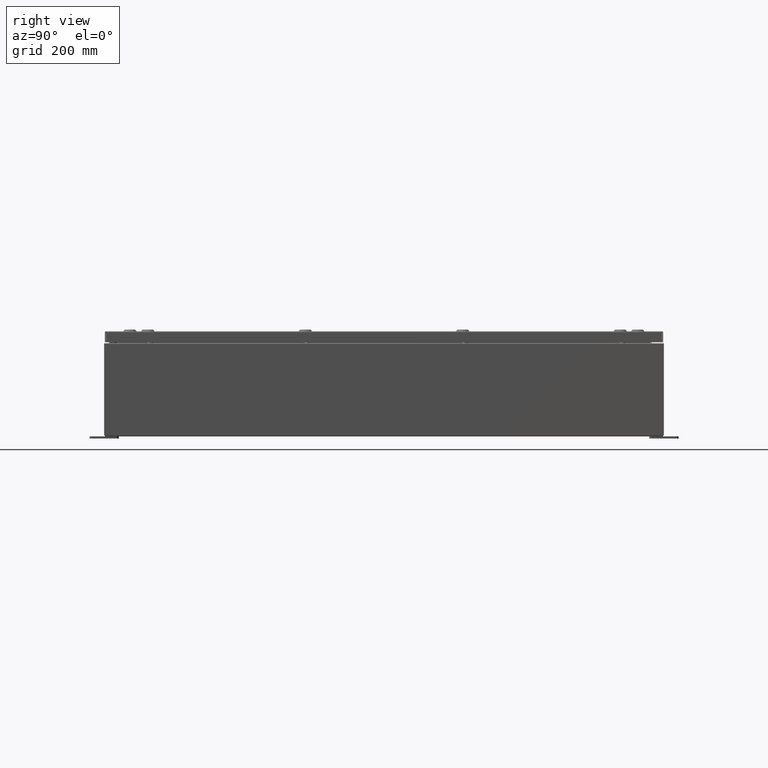
[diagram: clean part render]
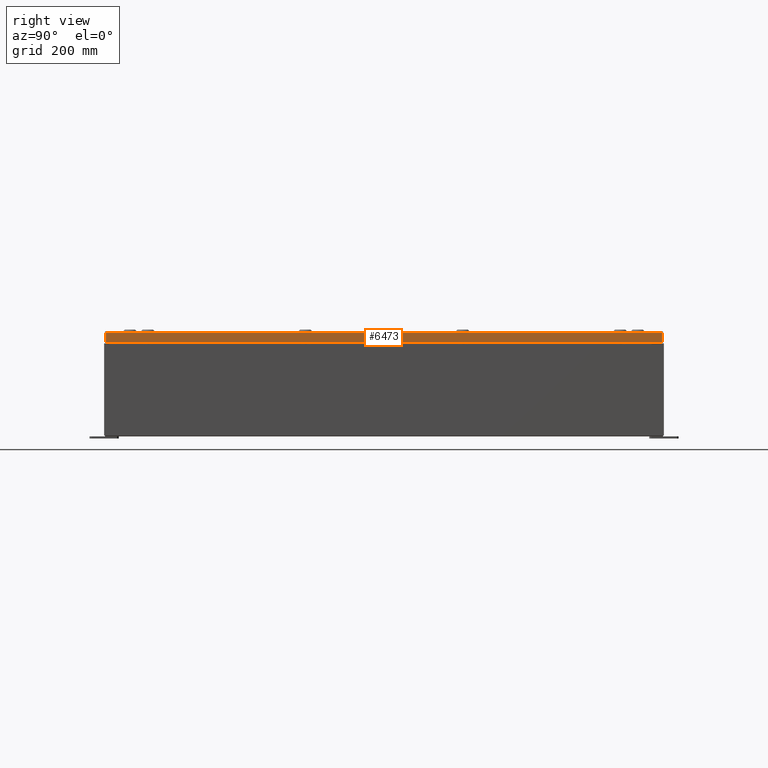
[diagram: same view with one face highlighted and labeled with its STEP entity id]
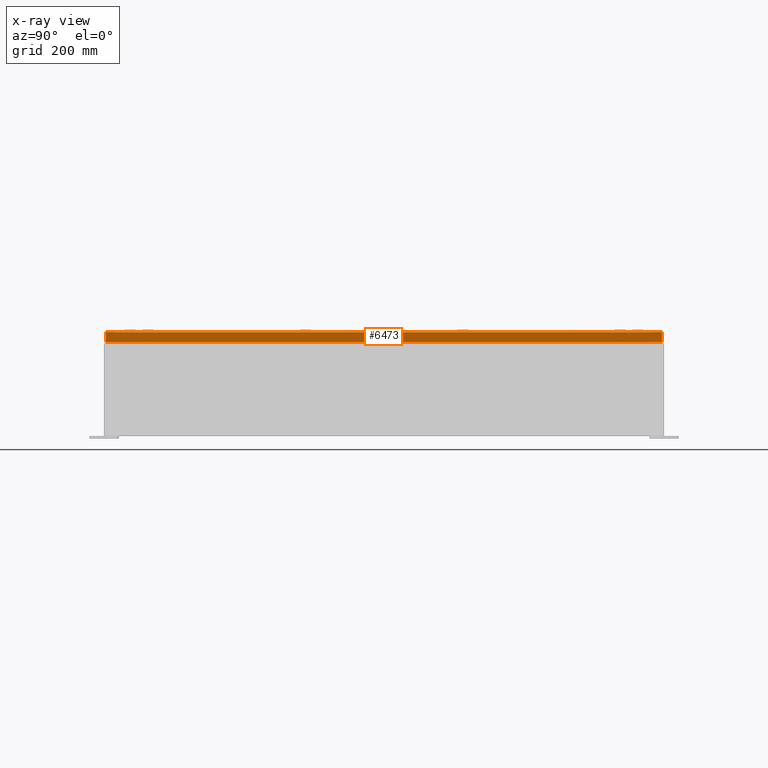
[diagram: x-ray of the same camera — body ghosted, the highlighted face saturated]
A machine part, right view. The second image highlights one B-rep face of the part: STEP entity #6473.
The next image is the same camera in x-ray: the body ghosted, the highlighted face saturated — about 0% of this face is hidden behind the body in this view.
In plain terms, the highlighted planar face has unit normal (1, 0, 0).
Its self-contained STEP definition (entity closure, byte-faithful):
#602 = VECTOR ( 'NONE', #53015, 39.37007874015748100 ) ;
#3177 = CARTESIAN_POINT ( 'NONE',  ( 17.93750000000000700, 23.84865786437627800, -0.9376999999999997600 ) ) ;
#4013 = VECTOR ( 'NONE', #51467, 39.37007874015748100 ) ;
#4488 = CARTESIAN_POINT ( 'NONE',  ( 17.93750000000000700, -23.84865786437626100, -0.9376999999999997600 ) ) ;
#6473 = ADVANCED_FACE ( 'NONE', ( #67368 ), #19571, .T. ) ;
#6684 = AXIS2_PLACEMENT_3D ( 'NONE', #14223, #56677, #24908 ) ;
#8718 = ORIENTED_EDGE ( 'NONE', *, *, #48916, .T. ) ;
#9006 = EDGE_CURVE ( 'NONE', #16138, #24005, #9886, .T. ) ;
#9070 = DIRECTION ( 'NONE',  ( -2.532419924601866100E-015, -6.982962677686265900E-015, 1.000000000000000000 ) ) ;
#9157 = DIRECTION ( 'NONE',  ( 0.0000000000000000000, -1.000000000000000000, 0.0000000000000000000 ) ) ;
#9886 = LINE ( 'NONE', #40885, #23981 ) ;
#10080 = CARTESIAN_POINT ( 'NONE',  ( 17.93750000000000400, -23.84865786437626800, -0.08770000000000008300 ) ) ;
#10414 = CARTESIAN_POINT ( 'NONE',  ( 17.93750000000000400, 23.84865786437627100, -0.08770000000000008300 ) ) ;
#13027 = CARTESIAN_POINT ( 'NONE',  ( 17.93750000000000400, 0.0000000000000000000, -0.08770000000000008300 ) ) ;
#13553 = VERTEX_POINT ( 'NONE', #10080 ) ;
#14223 = CARTESIAN_POINT ( 'NONE',  ( 17.93750000000000400, 0.0000000000000000000, 4.568609605355756000E-014 ) ) ;
#16138 = VERTEX_POINT ( 'NONE', #3177 ) ;
#16946 = ORIENTED_EDGE ( 'NONE', *, *, #51236, .F. ) ;
#19571 = PLANE ( 'NONE',  #6684 ) ;
#23981 = VECTOR ( 'NONE', #9157, 39.37007874015748100 ) ;
#24005 = VERTEX_POINT ( 'NONE', #4488 ) ;
#24908 = DIRECTION ( 'NONE',  ( 2.532419924601866100E-015, 0.0000000000000000000, -1.000000000000000000 ) ) ;
#34553 = LINE ( 'NONE', #46136, #46981 ) ;
#35961 = VERTEX_POINT ( 'NONE', #10414 ) ;
#40590 = CARTESIAN_POINT ( 'NONE',  ( 17.93750000000000400, 23.84865786437627500, 2.122203838334061400E-013 ) ) ;
#40885 = CARTESIAN_POINT ( 'NONE',  ( 17.93750000000000700, -23.93750000000000000, -0.9376999999999997600 ) ) ;
#46136 = CARTESIAN_POINT ( 'NONE',  ( 17.93750000000000400, -23.84865786437626800, -0.07469999999999980800 ) ) ;
#46981 = VECTOR ( 'NONE', #9070, 39.37007874015748100 ) ;
#48916 = EDGE_CURVE ( 'NONE', #16138, #35961, #60510, .T. ) ;
#51236 = EDGE_CURVE ( 'NONE', #24005, #13553, #34553, .T. ) ;
#51467 = DIRECTION ( 'NONE',  ( -2.532419924601866100E-015, -6.982962677686265900E-015, 1.000000000000000000 ) ) ;
#53015 = DIRECTION ( 'NONE',  ( 0.0000000000000000000, -1.000000000000000000, 0.0000000000000000000 ) ) ;
#55363 = LINE ( 'NONE', #13027, #602 ) ;
#56677 = DIRECTION ( 'NONE',  ( 1.000000000000000000, 0.0000000000000000000, 2.532419924601866100E-015 ) ) ;
#60119 = ORIENTED_EDGE ( 'NONE', *, *, #9006, .F. ) ;
#60510 = LINE ( 'NONE', #40590, #4013 ) ;
#61451 = EDGE_CURVE ( 'NONE', #35961, #13553, #55363, .T. ) ;
#66776 = EDGE_LOOP ( 'NONE', ( #16946, #60119, #8718, #68468 ) ) ;
#67368 = FACE_OUTER_BOUND ( 'NONE', #66776, .T. ) ;
#68468 = ORIENTED_EDGE ( 'NONE', *, *, #61451, .T. ) ;